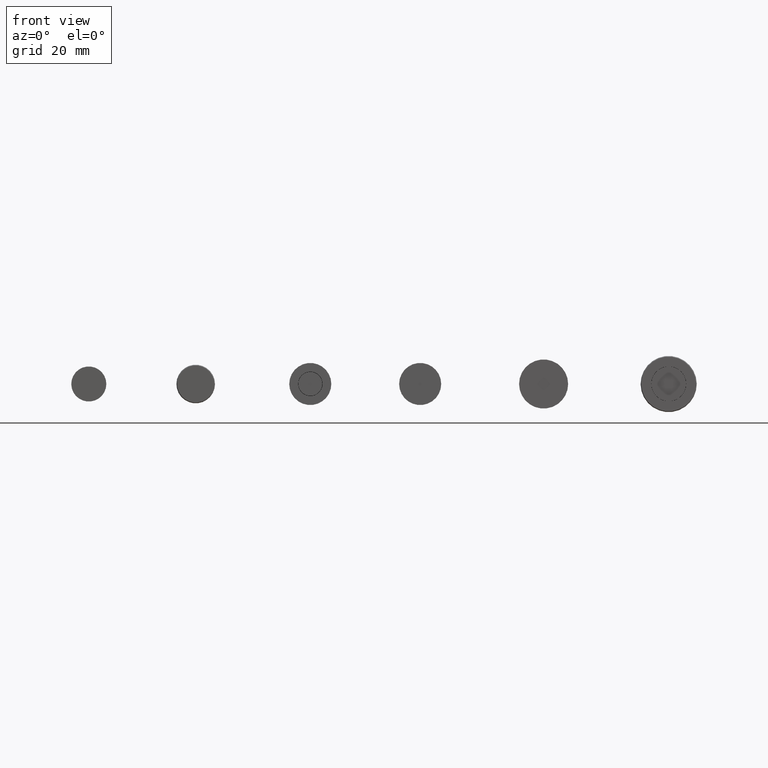
[diagram: clean part render]
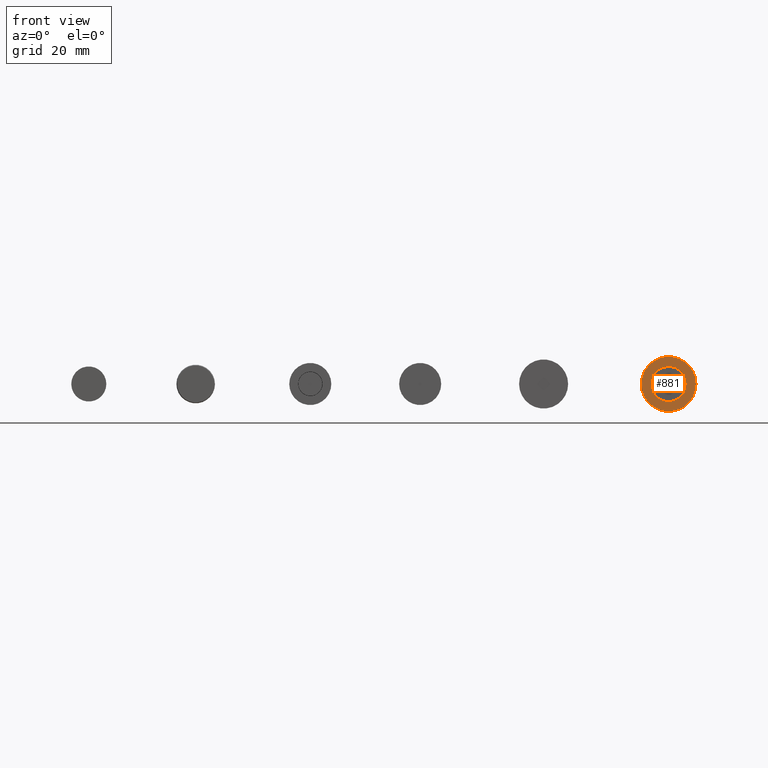
[diagram: same view with one face highlighted and labeled with its STEP entity id]
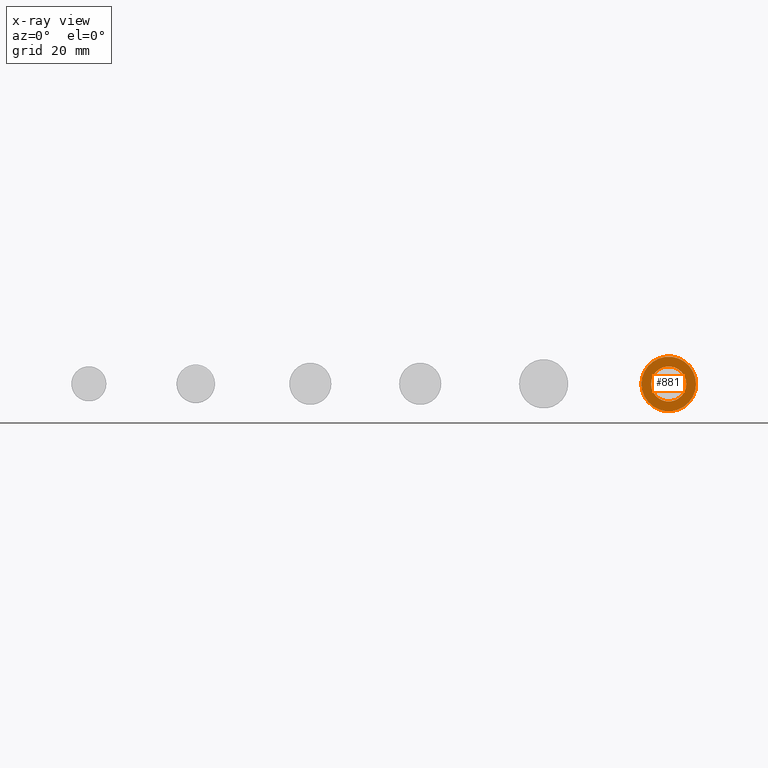
[diagram: x-ray of the same camera — body ghosted, the highlighted face saturated]
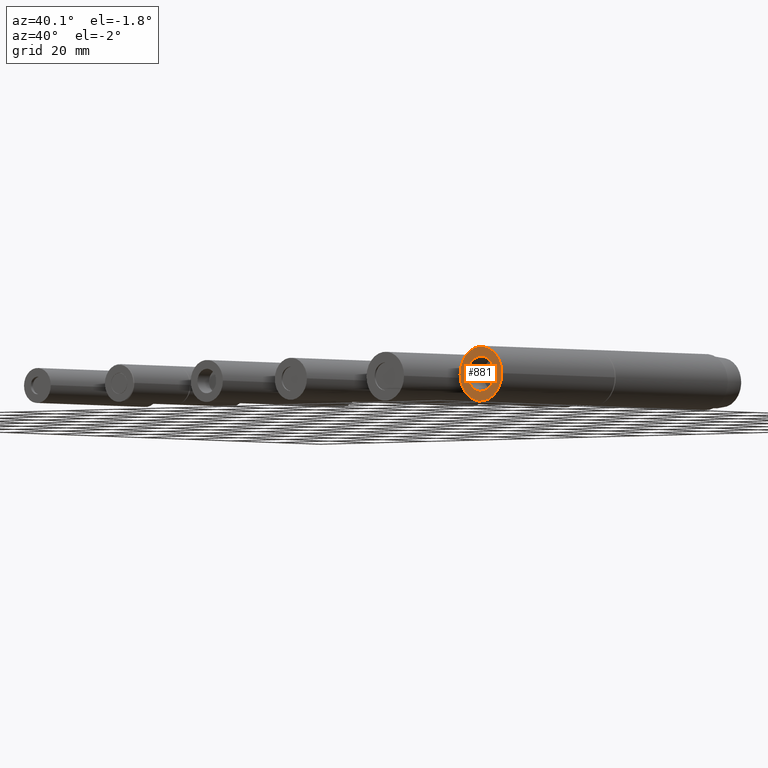
[diagram: same view with one face highlighted and labeled with its STEP entity id]
A machine part, front view. The second image highlights one B-rep face of the part: STEP entity #881.
The next image is the same camera in x-ray: the body ghosted, the highlighted face saturated — about 0% of this face is hidden behind the body in this view.
A second angle (auxiliary view) of the same face is appended — the face is thin or edge-on in the first view.
In plain terms, the highlighted planar face has unit normal (0, 1, 0).
Its self-contained STEP definition (entity closure, byte-faithful):
#202=PLANE('',#1059);
#258=FACE_BOUND('',#454,.T.);
#328=FACE_OUTER_BOUND('',#453,.T.);
#453=EDGE_LOOP('',(#786));
#454=EDGE_LOOP('',(#787));
#521=CIRCLE('',#1058,7.8);
#522=CIRCLE('',#1060,5.);
#587=VERTEX_POINT('',#1686);
#588=VERTEX_POINT('',#1689);
#654=EDGE_CURVE('',#587,#587,#521,.T.);
#655=EDGE_CURVE('',#588,#588,#522,.T.);
#786=ORIENTED_EDGE('',*,*,#654,.F.);
#787=ORIENTED_EDGE('',*,*,#655,.T.);
#881=ADVANCED_FACE('',(#328,#258),#202,.F.);
#1058=AXIS2_PLACEMENT_3D('',#1687,#1399,#1400);
#1059=AXIS2_PLACEMENT_3D('',#1688,#1401,#1402);
#1060=AXIS2_PLACEMENT_3D('',#1690,#1403,#1404);
#1399=DIRECTION('center_axis',(0.,0.,-1.));
#1400=DIRECTION('ref_axis',(-1.,0.,0.));
#1401=DIRECTION('center_axis',(0.,0.,-1.));
#1402=DIRECTION('ref_axis',(-1.,0.,0.));
#1403=DIRECTION('center_axis',(0.,0.,-1.));
#1404=DIRECTION('ref_axis',(-1.,0.,0.));
#1686=CARTESIAN_POINT('',(7.8,-9.55224503334935E-16,50.));
#1687=CARTESIAN_POINT('Origin',(0.,0.,50.));
#1688=CARTESIAN_POINT('Origin',(0.,0.,50.));
#1689=CARTESIAN_POINT('',(5.,6.12323399573677E-16,50.));
#1690=CARTESIAN_POINT('Origin',(0.,0.,50.));